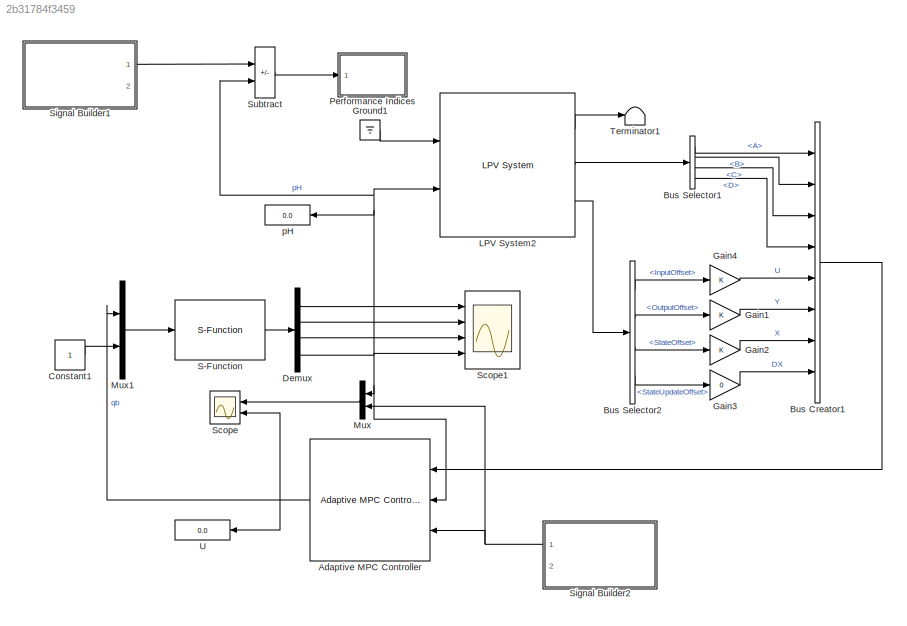
MODEL slx_2b31784f3459
KIND model
CONFIG AbsTol = auto
CONFIG EnableMultiTasking = off
CONFIG FixedStep = auto
CONFIG MaxStep = 0.1
CONFIG MinStep = auto
CONFIG RelTol = 1e-3
CONFIG SampleTimeConstraint = Unconstrained
CONFIG SolverName = ode45
CONFIG StartTime = 0.0
CONFIG StopTime = 100
BLOCK [Reference] Adaptive MPC Controller  REF=mpclib/Adaptive MPC Controller  (lib defined in mdl_ae329e0e0455)
  Ports = [3, 1]
  SCDEnableBlockLinearizationSpecification = on
  SourceBlock = mpclib/Adaptive MPC Controller
  SourceProductBaseCode = MP
  SourceType = Adaptive MPC
BLOCK [BusCreator] Bus Creator1
  DisplayOption = bar
  InheritFromInputs = on
  Inputs = 8
  Ports = [8, 1]
BLOCK [BusSelector] Bus Selector1
  OutputSignals = A,B,C,D
  Ports = [1, 4]
BLOCK [BusSelector] Bus Selector2
  OutputSignals = InputOffset,OutputOffset,StateOffset,StateUpdateOffset
  Ports = [1, 4]
BLOCK [Constant] Constant1
BLOCK [Demux] Demux
  Ports = [1, 4]
BLOCK [Gain] Gain1
BLOCK [Gain] Gain2
BLOCK [Gain] Gain3
  Gain = 0
BLOCK [Gain] Gain4
BLOCK [Ground] Ground1
BLOCK [Reference] LPV System2  REF=cstblocks/Linear Parameter Varying/LPV System
  Ports = [2, 3]
  SourceBlock = cstblocks/Linear Parameter Varying/LPV System
  SourceProductBaseCode = CT
  SourceType = LPV Block
BLOCK [Mux] Mux
  DisplayOption = bar
  Inputs = 2
  NameLocation = top
  Ports = [2, 1]
BLOCK [Mux] Mux1
  DisplayOption = bar
  Inputs = 2
  Ports = [2, 1]
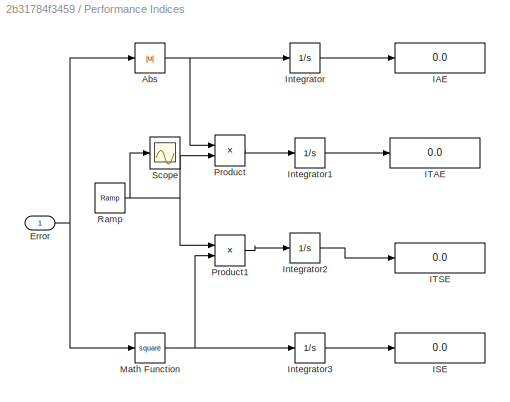
BLOCK [SubSystem] Performance Indices
  Ports = [1]
  RequestExecContextInheritance = off
BLOCK [Abs] Performance Indices/Abs
  SaturateOnIntegerOverflow = off
BLOCK [Inport] Performance Indices/Error
BLOCK [Display] Performance Indices/IAE
  Decimation = 1
  Ports = [1]
BLOCK [Display] Performance Indices/ISE
  Decimation = 1
  Ports = [1]
BLOCK [Display] Performance Indices/ITAE
  Decimation = 1
  Ports = [1]
BLOCK [Display] Performance Indices/ITSE
  Decimation = 1
  Ports = [1]
BLOCK [Integrator] Performance Indices/Integrator
  Ports = [1, 1]
BLOCK [Integrator] Performance Indices/Integrator1
  Ports = [1, 1]
BLOCK [Integrator] Performance Indices/Integrator2
  Ports = [1, 1]
BLOCK [Integrator] Performance Indices/Integrator3
  Ports = [1, 1]
BLOCK [Math] Performance Indices/Math Function
  Operator = square
  Ports = [1, 1]
  SignedPower = on
BLOCK [Product] Performance Indices/Product
  Ports = [2, 1]
  RndMeth = Zero
BLOCK [Product] Performance Indices/Product1
  Ports = [2, 1]
  RndMeth = Zero
BLOCK [Reference] Performance Indices/Ramp  REF=simulink/Sources/Ramp
  Ports = [0, 1]
  SourceBlock = simulink/Sources/Ramp
  SourceProductBaseCode = SL
  SourceType = Ramp
BLOCK [Scope] Performance Indices/Scope
  Floating = off
  NumInputPorts = 1
  Ports = [1]
  ScopeSpecificationString = Simulink.scopes.TimeScopeBlockCfg('CurrentConfiguration', extmgr.ConfigurationSet(extmgr.Configuration('Core','General UI',true),extmgr.Configuration('Core','Source UI',true),extmgr.Configuration('Sources','WiredSimulink',true,'DataLoggingLimitDataPoints',true,'DataLoggingSaveFormat','Array','DataLoggingDecimation','1','DataLoggingDecimateData',true),extmgr.Configuration('Visuals','Time Domain',tr...<+878ch>
BLOCK [S-Function] S-Function
  EnableBusSupport = off
  FunctionName = pH_sfun
  Ports = [1, 1]
  SFcnIsStateOwnerBlock = off
  SFunctionDeploymentMode = off
BLOCK [Scope] Scope
  Floating = off
  NumInputPorts = 2
  Ports = [2]
  ScopeSpecificationString = Simulink.scopes.TimeScopeBlockCfg('CurrentConfiguration', extmgr.ConfigurationSet(extmgr.Configuration('Core','General UI',true),extmgr.Configuration('Core','Source UI',true),extmgr.Configuration('Sources','WiredSimulink',true,'DataLogging',true,'DataLoggingVariableName','ScopeData2'),extmgr.Configuration('Visuals','Time Domain',true,'SerializedDisplays',{struct('MinYLimReal','2.28517','MaxYLimRea...<+2086ch>
BLOCK [Scope] Scope1
  Floating = off
  NumInputPorts = 4
  Ports = [4]
  ScopeSpecificationString = Simulink.scopes.TimeScopeBlockCfg('CurrentConfiguration', extmgr.ConfigurationSet(extmgr.Configuration('Core','General UI',true),extmgr.Configuration('Core','Source UI',true),extmgr.Configuration('Sources','WiredSimulink',true,'DataLoggingVariableName','ScopeData1'),extmgr.Configuration('Visuals','Time Domain',true,'SerializedDisplays',{struct('MinYLimReal','0.00056','MaxYLimReal','0.00205','YLabe...<+3433ch>
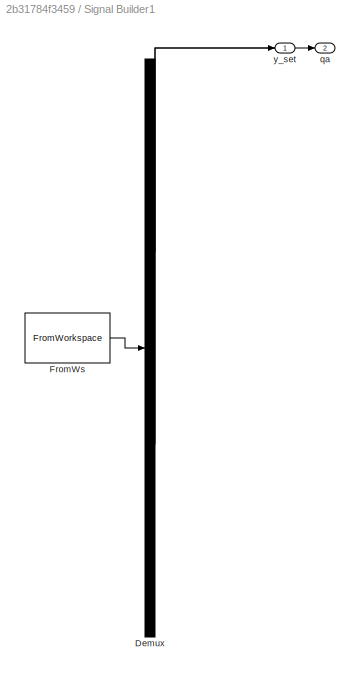
BLOCK [SubSystem] Signal Builder1
  ClipboardFcn = sigbuilder_block('clipboard');
  CloseFcn = sigbuilder_block('close');
  ContinueFcn = sigbuilder_block('continue');
  CopyFcn = sigbuilder_block('copy');
  DeleteFcn = sigbuilder_block('delete');
  LoadFcn = sigbuilder_block('load');
  MaskHideContents = on
  ModelCloseFcn = sigbuilder_block('modelClose');
  NameChangeFcn = sigbuilder_block('namechange');
  OpenFcn = sigbuilder_block('open',[443.25 6 575.25 506.25 ]);
  PauseFcn = sigbuilder_block('pause');
  Ports = [0, 2]
  PreSaveFcn = sigbuilder_block('preSave');
  RequestExecContextInheritance = off
  StartFcn = sigbuilder_block('start');
  StopFcn = sigbuilder_block('stop');
  Tag = STV Subsys
BLOCK [Demux] Signal Builder1/Demux
  DisplayOption = none
  Outputs = 2
  Ports = [1, 2]
  Tag = STV Demux
BLOCK [FromWorkspace] Signal Builder1/FromWs
  Tag = STV FromWs
  VariableName = tuvar
BLOCK [Outport] Signal Builder1/qa
  Port = 2
  Tag = STV Outport
  VectorParamsAs1DForOutWhenUnconnected = off
BLOCK [Outport] Signal Builder1/y_set
  Tag = STV Outport
  VectorParamsAs1DForOutWhenUnconnected = off
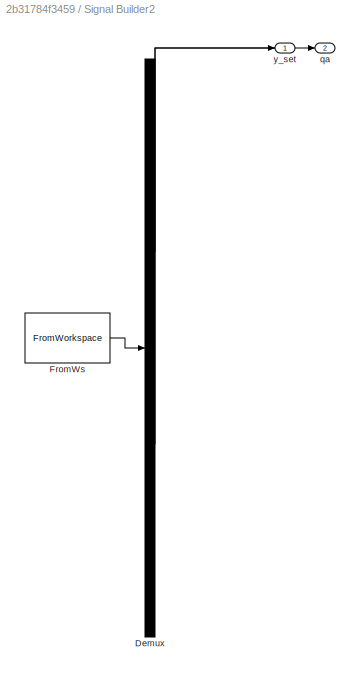
BLOCK [SubSystem] Signal Builder2
  ClipboardFcn = sigbuilder_block('clipboard');
  CloseFcn = sigbuilder_block('close');
  ContinueFcn = sigbuilder_block('continue');
  CopyFcn = sigbuilder_block('copy');
  DeleteFcn = sigbuilder_block('delete');
  LoadFcn = sigbuilder_block('load');
  MaskHideContents = on
  ModelCloseFcn = sigbuilder_block('modelClose');
  NameChangeFcn = sigbuilder_block('namechange');
  OpenFcn = sigbuilder_block('open',[443.25 6 575.25 506.25 ]);
  PauseFcn = sigbuilder_block('pause');
  Ports = [0, 2]
  PreSaveFcn = sigbuilder_block('preSave');
  RequestExecContextInheritance = off
  StartFcn = sigbuilder_block('start');
  StopFcn = sigbuilder_block('stop');
  Tag = STV Subsys
BLOCK [Demux] Signal Builder2/Demux
  DisplayOption = none
  Outputs = 2
  Ports = [1, 2]
  Tag = STV Demux
BLOCK [FromWorkspace] Signal Builder2/FromWs
  Tag = STV FromWs
  VariableName = tuvar
BLOCK [Outport] Signal Builder2/qa
  Port = 2
  Tag = STV Outport
  VectorParamsAs1DForOutWhenUnconnected = off
BLOCK [Outport] Signal Builder2/y_set
  Tag = STV Outport
  VectorParamsAs1DForOutWhenUnconnected = off
BLOCK [Sum] Subtract
  IconShape = rectangular
  Inputs = +-
  Ports = [2, 1]
BLOCK [Terminator] Terminator1
BLOCK [Display] U
  Decimation = 1
  Ports = [1]
BLOCK [Display] pH
  Decimation = 1
  Ports = [1]
NET Adaptive MPC Controller:1 -> Mux1:1, Scope:2, U:1
LINE Bus Creator1:1 -> Adaptive MPC Controller:1
LINE Bus Selector1:1 -> Bus Creator1:1
LINE Bus Selector1:2 -> Bus Creator1:2
LINE Bus Selector1:3 -> Bus Creator1:3
LINE Bus Selector1:4 -> Bus Creator1:4
LINE Bus Selector2:1 -> Gain4:1
LINE Bus Selector2:2 -> Gain1:1
LINE Bus Selector2:3 -> Gain2:1
LINE Bus Selector2:4 -> Gain3:1
LINE Constant1:1 -> Mux1:2
LINE Demux:1 -> Scope1:1
LINE Demux:2 -> Scope1:2
LINE Demux:3 -> Scope1:3
NET Demux:4 -> Adaptive MPC Controller:2, LPV System2:2, Mux:1, Scope1:4, Subtract:2, pH:1
LINE Gain1:1 -> Bus Creator1:6
LINE Gain2:1 -> Bus Creator1:7
LINE Gain3:1 -> Bus Creator1:8
LINE Gain4:1 -> Bus Creator1:5
LINE Ground1:1 -> LPV System2:1
LINE LPV System2:1 -> Terminator1:1
LINE LPV System2:2 -> Bus Selector1:1
LINE LPV System2:3 -> Bus Selector2:1
LINE Mux1:1 -> S-Function:1
LINE Mux:1 -> Scope:1
NET Performance Indices/Abs:1 -> Performance Indices/Integrator:1, Performance Indices/Product:1
NET Performance Indices/Error:1 -> Performance Indices/Abs:1, Performance Indices/Math Function:1
LINE Performance Indices/Integrator1:1 -> Performance Indices/ITAE:1
LINE Performance Indices/Integrator2:1 -> Performance Indices/ITSE:1
LINE Performance Indices/Integrator3:1 -> Performance Indices/ISE:1
LINE Performance Indices/Integrator:1 -> Performance Indices/IAE:1
NET Performance Indices/Math Function:1 -> Performance Indices/Integrator3:1, Performance Indices/Product1:2
LINE Performance Indices/Product1:1 -> Performance Indices/Integrator2:1
LINE Performance Indices/Product:1 -> Performance Indices/Integrator1:1
NET Performance Indices/Ramp:1 -> Performance Indices/Product1:1, Performance Indices/Product:2, Performance Indices/Scope:1
LINE S-Function:1 -> Demux:1
LINE Signal Builder1:1 -> Subtract:1
NET Signal Builder2:1 -> Adaptive MPC Controller:3, Mux:2
LINE Subtract:1 -> Performance Indices:1
note: NET lines group one-source signal fan-out (src -> all destinations, sorted); 1:1 wires keep LINE
